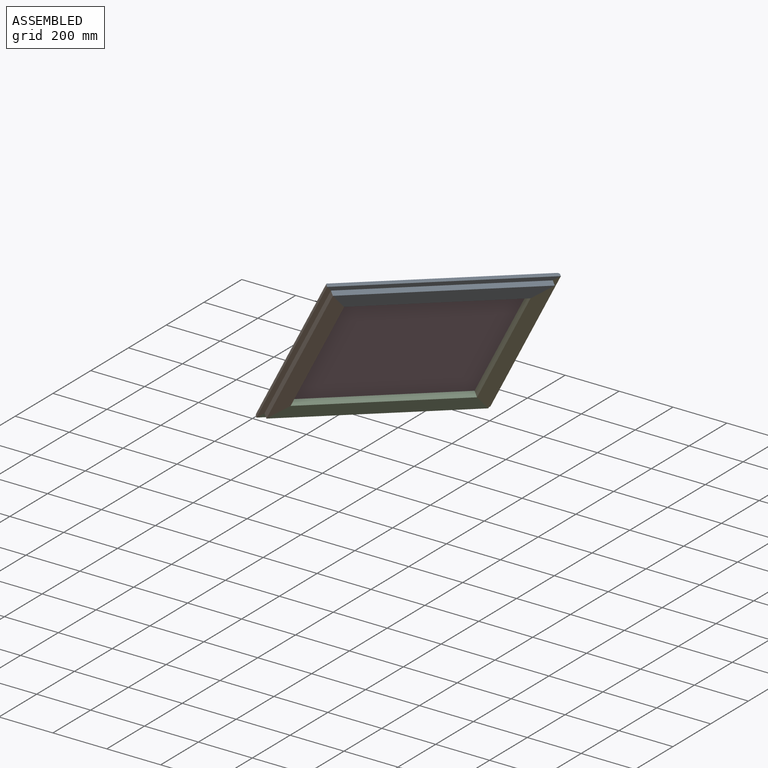
[diagram: assembled view]
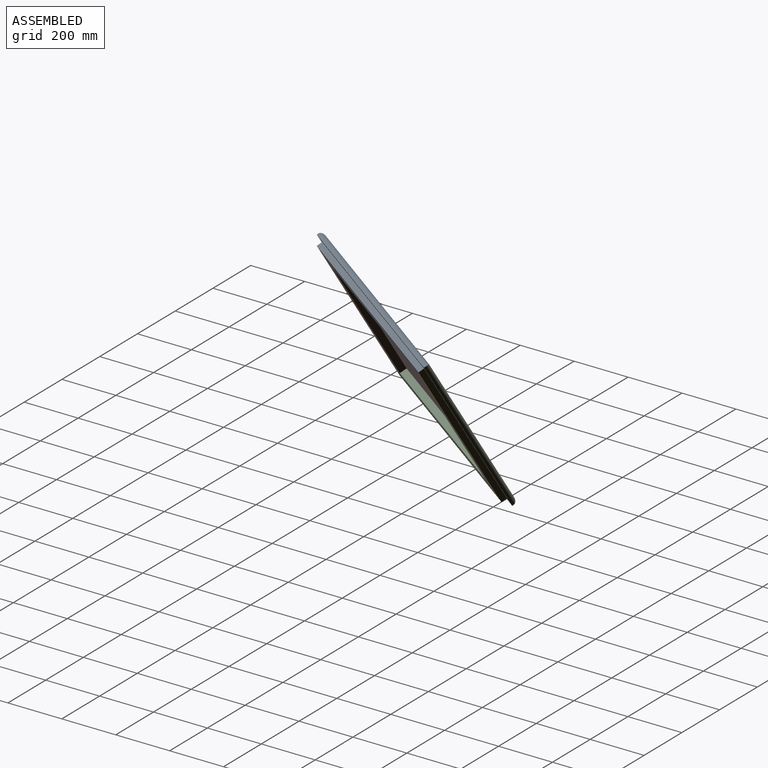
[diagram: assembled view, second angle]
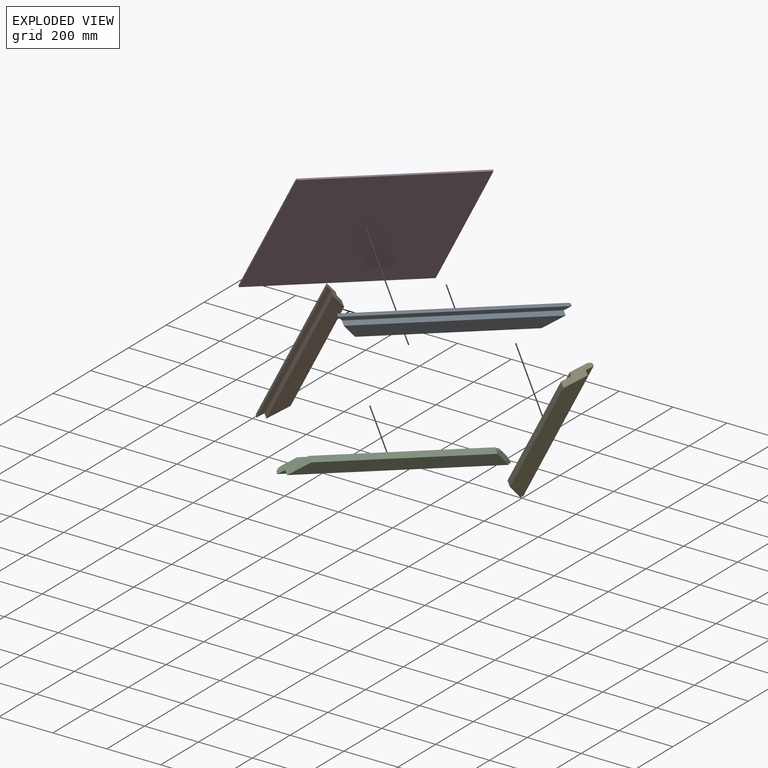
[diagram: exploded view]
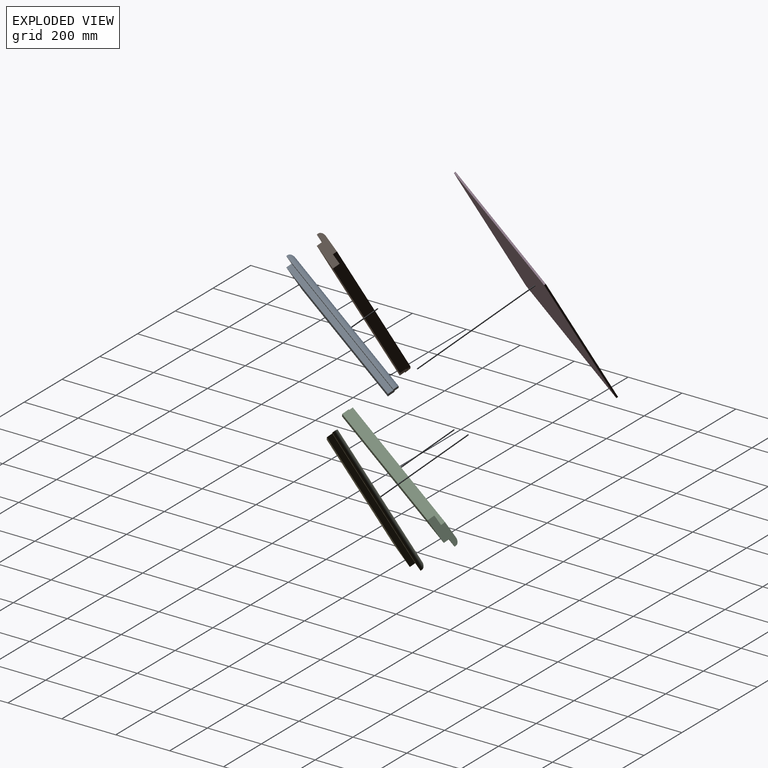
[diagram: exploded view, second angle]
ASSEMBLY  parts=5 mates=4
PART A: 11 faces, bbox 80x790x40 mm
  f0: plane 790x5mm, normal (-1,0,0), area 3950mm2, adj f4,f5,f9,f10
  f1: plane 750x60mm, normal (0,0,-1), area 41400mm2, adj f2,f6,f9,f10
  f2: plane 630x25mm, normal (1,0,0), area 15750mm2, adj f1,f7,f9,f10
  f3: plane 760x40mm, normal (0,0,1), area 28800mm2, adj f4,f8,f9,f10
  f4: cylinder r=15mm len=790mm, axis (0,1,0), area 18357.1mm2, adj f0,f3,f9,f10
  f5: plane 790x20mm, normal (0,0,-1), area 15400mm2, adj f0,f6,f9,f10
  f6: plane 750x20mm, normal (-1,0,0), area 15000mm2, adj f1,f5,f9,f10
  f7: plane 680x25mm, normal (0,0,1), area 16375mm2, adj f2,f8,f9,f10
  f8: plane 680x15mm, normal (1,0,0), area 10200mm2, adj f3,f7,f9,f10
  f9: plane 80x80mm, normal (0.71,0.71,0), area 3361.2mm2, adj f0,f1,f2,f3,f4,f5,f6,f7
  f10: plane 80x80mm, normal (0.71,-0.71,0), area 3361.2mm2, adj f0,f1,f2,f3,f4,f5,f6,f7
PART B: 11 faces, bbox 80x660x40 mm
  f0: plane 660x5mm, normal (-1,0,0), area 3300mm2, adj f4,f5,f9,f10
  f1: plane 620x60mm, normal (0,0,-1), area 33600mm2, adj f2,f6,f9,f10
  f2: plane 500x25mm, normal (1,0,0), area 12500mm2, adj f1,f7,f9,f10
  f3: plane 630x40mm, normal (0,0,1), area 23600mm2, adj f4,f8,f9,f10
  f4: cylinder r=15mm len=660mm, axis (0,1,0), area 15294mm2, adj f0,f3,f9,f10
  f5: plane 660x20mm, normal (0,0,-1), area 12800mm2, adj f0,f6,f9,f10
  f6: plane 620x20mm, normal (-1,0,0), area 12400mm2, adj f1,f5,f9,f10
  f7: plane 550x25mm, normal (0,0,1), area 13125mm2, adj f2,f8,f9,f10
  f8: plane 550x15mm, normal (1,0,0), area 8250mm2, adj f3,f7,f9,f10
  f9: plane 80x80mm, normal (0.71,0.71,0), area 3361.2mm2, adj f0,f1,f2,f3,f4,f5,f6,f7
  f10: plane 80x80mm, normal (0.71,-0.71,0), area 3361.2mm2, adj f0,f1,f2,f3,f4,f5,f6,f7
PART C: same geometry as A
PART D: 6 faces, bbox 665x6.4x540 mm
  f0: plane 540x6.4mm, normal (-1,0,0), area 3456mm2, adj f1,f3,f4,f5
  f1: plane 665x6.4mm, normal (0,0,-1), area 4256mm2, adj f0,f2,f4,f5
  f2: plane 540x6.4mm, normal (1,0,0), area 3456mm2, adj f1,f3,f4,f5
  f3: plane 665x6.4mm, normal (0,0,1), area 4256mm2, adj f0,f2,f4,f5
  f4: plane 665x540mm, normal (0,-1,0), area 359100mm2, adj f0,f1,f2,f3
  f5: plane 665x540mm, normal (0,1,0), area 359100mm2, adj f0,f1,f2,f3
PART E: same geometry as B
PLACE A rot(axis=(-0.47,0.19,0.86),157.9deg) t=(-478.84,-909.5,-87.83)mm
PLACE B rot(axis=(-0.68,-0.28,0.68),85.8deg) t=(-808.84,-812.85,-651.17)mm
PLACE C rot(axis=(-0.36,-0.86,-0.36),64.7deg) t=(-413.84,-138.54,-766.87)mm
PLACE D rot(axis=(0.47,-0.86,-0.19),157.9deg) t=(-181.18,-287.77,-225.81)mm
PLACE E rot(axis=(0.22,-0.52,-0.83),125deg) t=(-83.84,-235.19,-203.52)mm
MATE fastened E.f3 <-> A.f3  axis (-0.71,0.5,0.5) through (-167.12,-254.08,-222.41)mm
MATE fastened D.f4 <-> B.f7  axis (0.71,-0.5,-0.5) through (-494.01,-832.73,-136.06)mm
MATE fastened B.f3 <-> A.f3  axis (-0.71,0.5,0.5) through (-507.12,-834.5,-122.83)mm
MATE fastened C.f3 <-> B.f3  axis (-0.71,0.5,0.5) through (-782.12,-753.95,-592.28)mm
